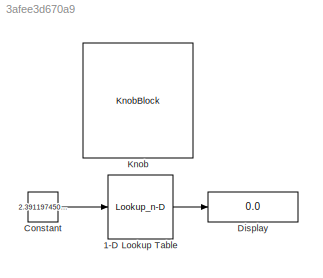
MODEL slx_3afee3d670a9
KIND model
CONFIG AbsTol = auto
CONFIG EnableMultiTasking = off
CONFIG FixedStep = auto
CONFIG MaxStep = auto
CONFIG MinStep = auto
CONFIG RelTol = 1e-3
CONFIG SampleTimeConstraint = Unconstrained
CONFIG SolverName = VariableStepAuto
CONFIG StartTime = 0.0
CONFIG StopTime = 10.0
BLOCK [Lookup_n-D] 1-D Lookup Table
  BreakpointsForDimension1 = [0\n0.1\n0.2\n0.3\n0.4\n0.6\n0.8\n1\n1.2\n1.4\n1.6\n1.8\n2\n2.2\n2.4]
  InputPortMap = u0
  InternalRulePriority = Speed
  NumberOfTableDimensions = 1
  Ports = [1, 1]
  RndMeth = Simplest
  Table = [0\n0\n0\n0\n0.5\n1\n2\n3\n5\n7.5\n10\n15\n20\n25\n30\n]
BLOCK [Constant] Constant
  Value = 2.391197450365022
BLOCK [Display] Display
  Decimation = 1
  Ports = [1]
BLOCK [KnobBlock] Knob
LINE 1-D Lookup Table:1 -> Display:1
LINE Constant:1 -> 1-D Lookup Table:1
